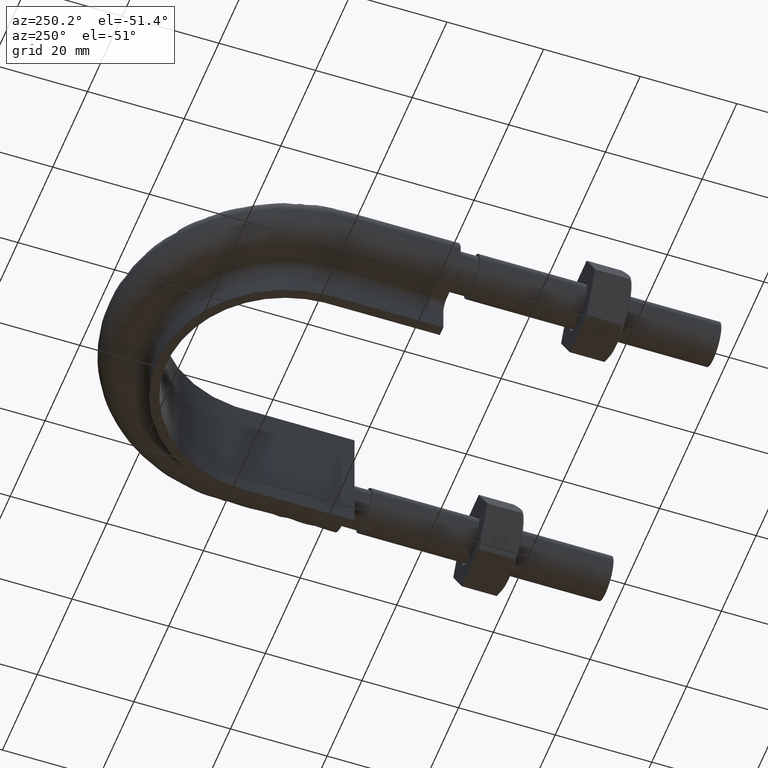
[diagram: clean part render]
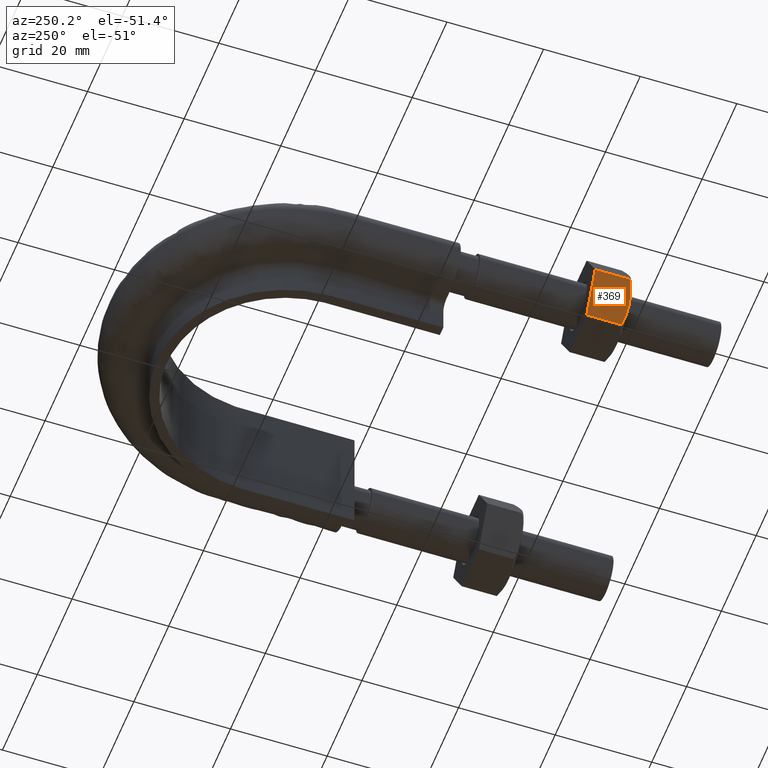
[diagram: same view with one face highlighted and labeled with its STEP entity id]
A machine part, auxiliary view. The second image highlights one B-rep face of the part: STEP entity #369.
In plain terms, the highlighted planar face has unit normal (0.866, -0, 0.5).
Its self-contained STEP definition (entity closure, byte-faithful):
#369 = ADVANCED_FACE( '', ( #515 ), #516, .F. );
#515 = FACE_OUTER_BOUND( '', #1514, .T. );
#516 = PLANE( '', #1515 );
#1514 = EDGE_LOOP( '', ( #1930, #1931, #1932, #1933, #1934 ) );
#1515 = AXIS2_PLACEMENT_3D( '', #1935, #1936, #1937 );
#1930 = ORIENTED_EDGE( '', *, *, #2178, .F. );
#1931 = ORIENTED_EDGE( '', *, *, #2210, .F. );
#1932 = ORIENTED_EDGE( '', *, *, #2208, .F. );
#1933 = ORIENTED_EDGE( '', *, *, #2203, .F. );
#1934 = ORIENTED_EDGE( '', *, *, #2198, .F. );
#1935 = CARTESIAN_POINT( '', ( -35.9074772881143, 27.9999999999973, -8.49999999999856 ) );
#1936 = DIRECTION( '', ( 0.866025403784584, -3.65183836636958E-016, 0.499999999999748 ) );
#1937 = DIRECTION( '', ( 4.26983489983687E-032, -1.00000000000000, -7.30367673274284E-016 ) );
#2178 = EDGE_CURVE( '', #2374, #2376, #2377, .T. );
#2198 = EDGE_CURVE( '', #2376, #2409, #2410, .T. );
#2203 = EDGE_CURVE( '', #2409, #2415, #2416, .T. );
#2208 = EDGE_CURVE( '', #2415, #2421, #2423, .F. );
#2210 = EDGE_CURVE( '', #2421, #2374, #2426, .T. );
#2374 = VERTEX_POINT( '', #2901 );
#2376 = VERTEX_POINT( '', #2903 );
#2377 = B_SPLINE_CURVE_WITH_KNOTS( '', 3, ( #2904, #2905, #2906, #2907, #2908, #2909 ), .UNSPECIFIED., .F., .F., ( 4, 2, 4 ), ( 8.67361737988404E-019, 0.00246745482903606, 0.00493490965807211 ), .UNSPECIFIED. );
#2409 = VERTEX_POINT( '', #2963 );
#2410 = LINE( '', #2964, #2965 );
#2415 = VERTEX_POINT( '', #2975 );
#2416 = LINE( '', #2976, #2977 );
#2421 = VERTEX_POINT( '', #2983 );
#2423 = LINE( '', #2985, #2986 );
#2426 = B_SPLINE_CURVE_WITH_KNOTS( '', 3, ( #2989, #2990, #2991, #2992, #2993, #2994 ), .UNSPECIFIED., .F., .F., ( 4, 2, 4 ), ( 4.26226979058364E-018, 0.00246745482903604, 0.00493490965807209 ), .UNSPECIFIED. );
#2901 = CARTESIAN_POINT( '', ( -38.3612159321690, 19.9999999999973, -4.24999999999783 ) );
#2903 = CARTESIAN_POINT( '', ( -35.9224662525188, 20.7505553499438, -8.47403835209717 ) );
#2904 = CARTESIAN_POINT( '', ( -38.3612159321690, 19.9999999999973, -4.24999999999784 ) );
#2905 = CARTESIAN_POINT( '', ( -37.9451329570738, 19.9999999999973, -4.97067685302754 ) );
#2906 = CARTESIAN_POINT( '', ( -37.5345628083266, 20.0716504305263, -5.68180521072939 ) );
#2907 = CARTESIAN_POINT( '', ( -36.7224943443384, 20.3328582843680, -7.08834904958229 ) );
#2908 = CARTESIAN_POINT( '', ( -36.3209300788314, 20.5215585493630, -7.78387875994495 ) );
#2909 = CARTESIAN_POINT( '', ( -35.9224662525188, 20.7505553499438, -8.47403835209717 ) );
#2963 = CARTESIAN_POINT( '', ( -35.9224662525188, 27.9999999999973, -8.47403835209717 ) );
#2964 = CARTESIAN_POINT( '', ( -35.9224662525188, 27.9999999999973, -8.47403835209717 ) );
#2965 = VECTOR( '', #3284, 1000.00000000000 );
#2975 = CARTESIAN_POINT( '', ( -40.7999656118192, 27.9999999999973, -0.0259616478985396 ) );
#2976 = CARTESIAN_POINT( '', ( -40.8112159321677, 27.9999999999973, -0.00647552145340707 ) );
#2977 = VECTOR( '', #3294, 1000.00000000000 );
#2983 = CARTESIAN_POINT( '', ( -40.7999656118192, 20.7505553499438, -0.0259616478985334 ) );
#2985 = CARTESIAN_POINT( '', ( -40.7999656118192, 27.9999999999973, -0.0259616478985366 ) );
#2986 = VECTOR( '', #3305, 1000.00000000000 );
#2989 = CARTESIAN_POINT( '', ( -40.7999656118192, 20.7505553499438, -0.0259616478985282 ) );
#2990 = CARTESIAN_POINT( '', ( -40.4015017855066, 20.5215585493630, -0.716121240050744 ) );
#2991 = CARTESIAN_POINT( '', ( -39.9999375199996, 20.3328582843680, -1.41165095041340 ) );
#2992 = CARTESIAN_POINT( '', ( -39.1878690560114, 20.0716504305263, -2.81819478926630 ) );
#2993 = CARTESIAN_POINT( '', ( -38.7772989072641, 19.9999999999973, -3.52932314696814 ) );
#2994 = CARTESIAN_POINT( '', ( -38.3612159321690, 19.9999999999973, -4.24999999999784 ) );
#3284 = DIRECTION( '', ( 2.44921270764476E-016, 1.00000000000000, 3.06151588455594E-016 ) );
#3294 = DIRECTION( '', ( -0.499999999999748, -1.42674417629372E-016, 0.866025403784584 ) );
#3305 = DIRECTION( '', ( 2.44921270764476E-016, 1.00000000000000, 3.06151588455594E-016 ) );